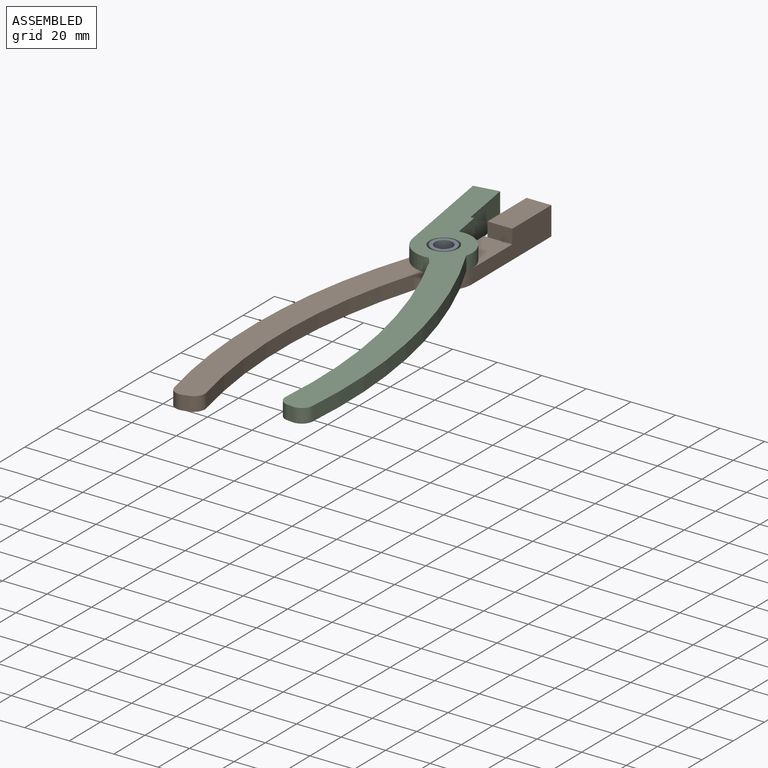
[diagram: assembled view]
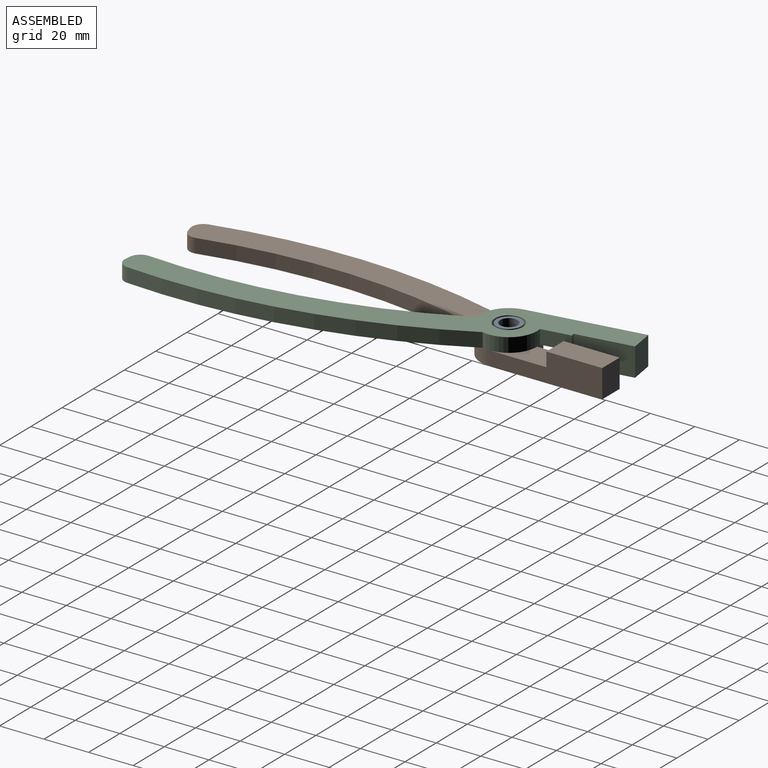
[diagram: assembled view, second angle]
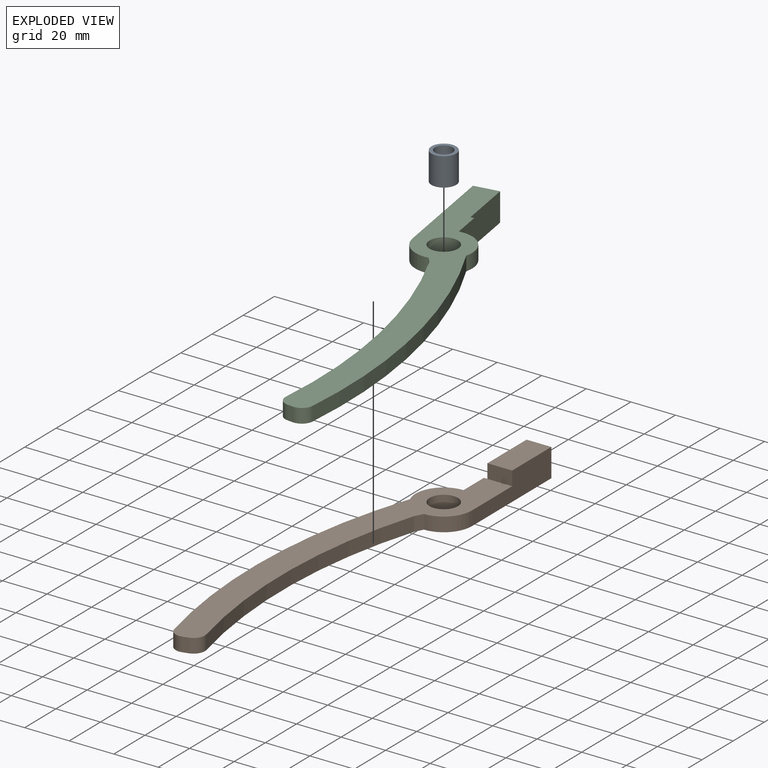
[diagram: exploded view]
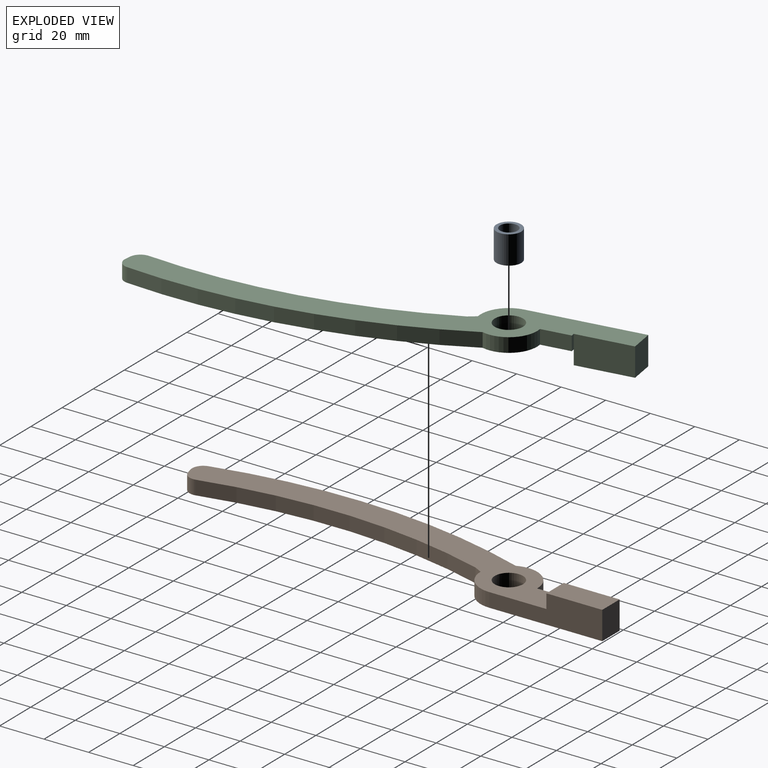
[diagram: exploded view, second angle]
ASSEMBLY  parts=3 mates=2
PART A: 4 faces, bbox 11.1x11.1x12.7 mm
  f0: cylinder r=3.97mm len=12.7mm, axis (0,0,-1), area 316.7mm2, adj f2,f3
  f1: cylinder r=5.56mm len=12.7mm, axis (0,0,-1), area 443.4mm2, adj f2,f3
  f2: plane 11.11x11.11mm, normal (0,0,1), area 47.5mm2, adj f0,f1
  f3: plane 11.11x11.11mm, normal (0,0,-1), area 47.5mm2, adj f0,f1
PART B: 18 faces, bbox 37.8x202x12.7 mm
  f0: plane 12.7x11.11mm, normal (0,1,0), area 141.1mm2, adj f3,f4,f6,f16
  f1: plane 13.02x6.35mm, normal (-1,0,0), area 82.7mm2, adj f4,f5,f8,f17
  f2: plane 11.11x6.35mm, normal (0,-1,0), area 70.6mm2, adj f3,f5,f6,f16
  f3: plane 25.08x11.11mm, normal (0,0,1), area 278.7mm2, adj f0,f2,f6,f16
  f4: plane 202.05x37.83mm, normal (0,0,-1), area 2660.6mm2, adj f0,f1,f6,f7,f8,f9,f10,f11
  f5: plane 176.97x37.83mm, normal (0,0,1), area 2381.9mm2, adj f1,f2,f6,f7,f8,f9,f10,f11
  f6: plane 50.8x12.7mm, normal (1,0,0), area 481.9mm2, adj f0,f2,f3,f4,f5,f9
  f7: cylinder r=6.35mm len=12.7mm, axis (0,0,-1), area 253.4mm2, adj f4,f5
  f8: cylinder r=12.7mm len=17.78mm, axis (0,0,1), area 159.9mm2, adj f1,f4,f5,f13
  f9: cylinder r=12.7mm len=12.7mm, axis (0,0,1), area 126.7mm2, adj f4,f5,f6,f11
  f10: plane 6.35x2.45mm, normal (0.26,-0.97,0), area 16.1mm2, adj f4,f5,f14,f15
  f11: plane 6.35x3.56mm, normal (0.88,-0.47,0), area 25.6mm2, adj f4,f5,f9,f12
  f12: cylinder r=241.58mm len=128.04mm, axis (0,0,1), area 823.2mm2, adj f4,f5,f11,f15
  f13: cylinder r=254.28mm len=142.3mm, axis (0,0,1), area 916.7mm2, adj f4,f5,f8,f14
  f14: cylinder r=5.08mm len=6.35mm, axis (0,0,1), area 51.3mm2, adj f4,f5,f10,f13
  f15: cylinder r=5.08mm len=6.35mm, axis (0,0,1), area 50mm2, adj f4,f5,f10,f12
  f16: plane 25.08x12.7mm, normal (-1,0,0), area 318.6mm2, adj f0,f2,f3,f4,f17
  f17: plane 6.35x1.59mm, normal (0,1,0), area 10.1mm2, adj f1,f4,f5,f16
PART C: same geometry as B
PLACE A t=(32.8,152.4,0)mm
PLACE B at identity fixed
PLACE C rot(axis=(0.08,-1,0),180deg) t=(74.67,5.96,12.7)mm
MATE revolute C.f7 <-> B.f7  axis (0,0,1) through (25.4,152.4,6.35)mm
MATE fastened A.f0 <-> B.f7  axis (0,0,-1) through (25.4,152.4,0)mm
